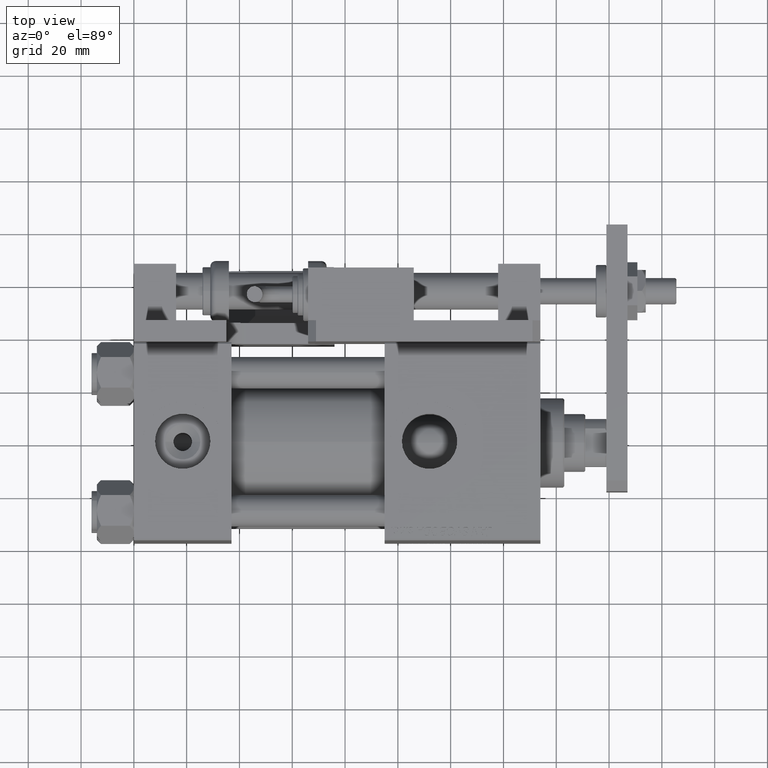
[diagram: clean part render]
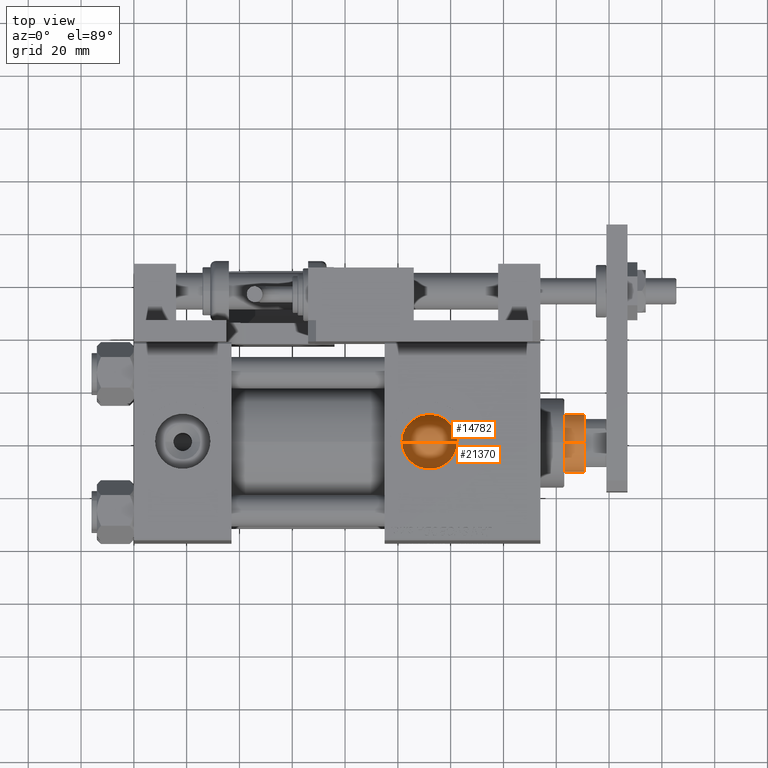
[diagram: same view with one multi-face feature highlighted, each face labeled with its STEP entity id]
A machine part, top view. The highlighted faces form ONE feature: a constant-radius fillet chain: 2 tangent blend faces with common blend radius 11 mm. The faces share edges in the B-rep.
Their STEP definitions:
[1] entity #21370 (Cylinder):
#404 = VERTEX_POINT ( 'NONE', #55527 ) ;
#561 = CIRCLE ( 'NONE', #54699, 11.00000000000000000 ) ;
#2974 = CARTESIAN_POINT ( 'NONE',  ( -11.00000000000000000, 0.000000000000000000, 134.0000000000000000 ) ) ;
#3624 = AXIS2_PLACEMENT_3D ( 'NONE', #30837, #13576, #52590 ) ;
#4585 = ORIENTED_EDGE ( 'NONE', *, *, #47228, .T. ) ;
#6151 = ORIENTED_EDGE ( 'NONE', *, *, #31148, .F. ) ;
#6798 = EDGE_CURVE ( 'NONE', #23362, #29466, #19469, .T. ) ;
#7210 = DIRECTION ( 'NONE',  ( -0.000000000000000000, -0.000000000000000000, -1.000000000000000000 ) ) ;
#8572 = CARTESIAN_POINT ( 'NONE',  ( -11.00000000000000000, 0.000000000000000000, 133.5000000000000000 ) ) ;
#10938 = ORIENTED_EDGE ( 'NONE', *, *, #6798, .T. ) ;
#11957 = CYLINDRICAL_SURFACE ( 'NONE', #3624, 11.00000000000000000 ) ;
#12417 = CARTESIAN_POINT ( 'NONE',  ( 0.000000000000000000, 0.000000000000000000, 38.00000000000000000 ) ) ;
#13576 = DIRECTION ( 'NONE',  ( -0.000000000000000000, -0.000000000000000000, -1.000000000000000000 ) ) ;
#16352 = EDGE_LOOP ( 'NONE', ( #32546, #4585, #10938, #6151 ) ) ;
#18601 = CARTESIAN_POINT ( 'NONE',  ( 11.00000000000000000, 1.347111479062088405E-15, 38.00000000000000000 ) ) ;
#19469 = CIRCLE ( 'NONE', #26711, 11.00000000000000000 ) ;
#21370 = ADVANCED_FACE ( 'NONE', ( #29214 ), #11957, .T. ) ;
#22222 = DIRECTION ( 'NONE',  ( -0.000000000000000000, -0.000000000000000000, -1.000000000000000000 ) ) ;
#23362 = VERTEX_POINT ( 'NONE', #18601 ) ;
#25428 = DIRECTION ( 'NONE',  ( 0.000000000000000000, 0.000000000000000000, 1.000000000000000000 ) ) ;
#25941 = CARTESIAN_POINT ( 'NONE',  ( -11.00000000000000000, 0.000000000000000000, 38.00000000000000000 ) ) ;
#25991 = DIRECTION ( 'NONE',  ( 1.000000000000000000, 0.000000000000000000, 0.000000000000000000 ) ) ;
#26470 = LINE ( 'NONE', #31535, #32931 ) ;
#26711 = AXIS2_PLACEMENT_3D ( 'NONE', #12417, #25428, #25991 ) ;
#29214 = FACE_OUTER_BOUND ( 'NONE', #16352, .T. ) ;
#29466 = VERTEX_POINT ( 'NONE', #25941 ) ;
#30837 = CARTESIAN_POINT ( 'NONE',  ( 0.000000000000000000, 0.000000000000000000, 134.0000000000000000 ) ) ;
#31148 = EDGE_CURVE ( 'NONE', #49122, #29466, #37190, .T. ) ;
#31535 = CARTESIAN_POINT ( 'NONE',  ( 11.00000000000000000, 1.347111479062088405E-15, 134.0000000000000000 ) ) ;
#32546 = ORIENTED_EDGE ( 'NONE', *, *, #48386, .T. ) ;
#32931 = VECTOR ( 'NONE', #22222, 1000.000000000000000 ) ;
#35960 = DIRECTION ( 'NONE',  ( 0.000000000000000000, 0.000000000000000000, -1.000000000000000000 ) ) ;
#37190 = LINE ( 'NONE', #2974, #48954 ) ;
#40474 = CARTESIAN_POINT ( 'NONE',  ( 0.000000000000000000, 0.000000000000000000, 133.5000000000000000 ) ) ;
#47228 = EDGE_CURVE ( 'NONE', #404, #23362, #26470, .T. ) ;
#48386 = EDGE_CURVE ( 'NONE', #49122, #404, #561, .T. ) ;
#48954 = VECTOR ( 'NONE', #7210, 1000.000000000000000 ) ;
#49122 = VERTEX_POINT ( 'NONE', #8572 ) ;
#52590 = DIRECTION ( 'NONE',  ( -1.000000000000000000, 0.000000000000000000, 0.000000000000000000 ) ) ;
#53488 = DIRECTION ( 'NONE',  ( 1.000000000000000000, 0.000000000000000000, 0.000000000000000000 ) ) ;
#54699 = AXIS2_PLACEMENT_3D ( 'NONE', #40474, #35960, #53488 ) ;
#55527 = CARTESIAN_POINT ( 'NONE',  ( 11.00000000000000000, 1.347111479062088405E-15, 133.5000000000000000 ) ) ;
[2] entity #14782 (Cylinder):
#404 = VERTEX_POINT ( 'NONE', #55527 ) ;
#2974 = CARTESIAN_POINT ( 'NONE',  ( -11.00000000000000000, 0.000000000000000000, 134.0000000000000000 ) ) ;
#3009 = CARTESIAN_POINT ( 'NONE',  ( 0.000000000000000000, 0.000000000000000000, 134.0000000000000000 ) ) ;
#3224 = DIRECTION ( 'NONE',  ( 0.000000000000000000, 0.000000000000000000, 1.000000000000000000 ) ) ;
#6130 = DIRECTION ( 'NONE',  ( 1.000000000000000000, 0.000000000000000000, 0.000000000000000000 ) ) ;
#6893 = CARTESIAN_POINT ( 'NONE',  ( 0.000000000000000000, 0.000000000000000000, 38.00000000000000000 ) ) ;
#7210 = DIRECTION ( 'NONE',  ( -0.000000000000000000, -0.000000000000000000, -1.000000000000000000 ) ) ;
#8434 = ORIENTED_EDGE ( 'NONE', *, *, #31148, .T. ) ;
#8572 = CARTESIAN_POINT ( 'NONE',  ( -11.00000000000000000, 0.000000000000000000, 133.5000000000000000 ) ) ;
#9639 = AXIS2_PLACEMENT_3D ( 'NONE', #10923, #10376, #6130 ) ;
#10376 = DIRECTION ( 'NONE',  ( 0.000000000000000000, 0.000000000000000000, -1.000000000000000000 ) ) ;
#10923 = CARTESIAN_POINT ( 'NONE',  ( 0.000000000000000000, 0.000000000000000000, 133.5000000000000000 ) ) ;
#14724 = EDGE_CURVE ( 'NONE', #404, #49122, #15963, .T. ) ;
#14782 = ADVANCED_FACE ( 'NONE', ( #41739 ), #24496, .T. ) ;
#15963 = CIRCLE ( 'NONE', #9639, 11.00000000000000000 ) ;
#17754 = EDGE_LOOP ( 'NONE', ( #35558, #38090, #8434, #51639 ) ) ;
#18601 = CARTESIAN_POINT ( 'NONE',  ( 11.00000000000000000, 1.347111479062088405E-15, 38.00000000000000000 ) ) ;
#22222 = DIRECTION ( 'NONE',  ( -0.000000000000000000, -0.000000000000000000, -1.000000000000000000 ) ) ;
#23362 = VERTEX_POINT ( 'NONE', #18601 ) ;
#24125 = AXIS2_PLACEMENT_3D ( 'NONE', #6893, #3224, #32356 ) ;
#24496 = CYLINDRICAL_SURFACE ( 'NONE', #52978, 11.00000000000000000 ) ;
#25941 = CARTESIAN_POINT ( 'NONE',  ( -11.00000000000000000, 0.000000000000000000, 38.00000000000000000 ) ) ;
#26470 = LINE ( 'NONE', #31535, #32931 ) ;
#29466 = VERTEX_POINT ( 'NONE', #25941 ) ;
#31148 = EDGE_CURVE ( 'NONE', #49122, #29466, #37190, .T. ) ;
#31535 = CARTESIAN_POINT ( 'NONE',  ( 11.00000000000000000, 1.347111479062088405E-15, 134.0000000000000000 ) ) ;
#32356 = DIRECTION ( 'NONE',  ( 1.000000000000000000, 0.000000000000000000, 0.000000000000000000 ) ) ;
#32931 = VECTOR ( 'NONE', #22222, 1000.000000000000000 ) ;
#35558 = ORIENTED_EDGE ( 'NONE', *, *, #47228, .F. ) ;
#37190 = LINE ( 'NONE', #2974, #48954 ) ;
#37226 = DIRECTION ( 'NONE',  ( -0.000000000000000000, -0.000000000000000000, -1.000000000000000000 ) ) ;
#38090 = ORIENTED_EDGE ( 'NONE', *, *, #14724, .T. ) ;
#41739 = FACE_OUTER_BOUND ( 'NONE', #17754, .T. ) ;
#43999 = CIRCLE ( 'NONE', #24125, 11.00000000000000000 ) ;
#46562 = DIRECTION ( 'NONE',  ( -1.000000000000000000, 0.000000000000000000, 0.000000000000000000 ) ) ;
#47228 = EDGE_CURVE ( 'NONE', #404, #23362, #26470, .T. ) ;
#48954 = VECTOR ( 'NONE', #7210, 1000.000000000000000 ) ;
#49122 = VERTEX_POINT ( 'NONE', #8572 ) ;
#51470 = EDGE_CURVE ( 'NONE', #29466, #23362, #43999, .T. ) ;
#51639 = ORIENTED_EDGE ( 'NONE', *, *, #51470, .T. ) ;
#52978 = AXIS2_PLACEMENT_3D ( 'NONE', #3009, #37226, #46562 ) ;
#55527 = CARTESIAN_POINT ( 'NONE',  ( 11.00000000000000000, 1.347111479062088405E-15, 133.5000000000000000 ) ) ;